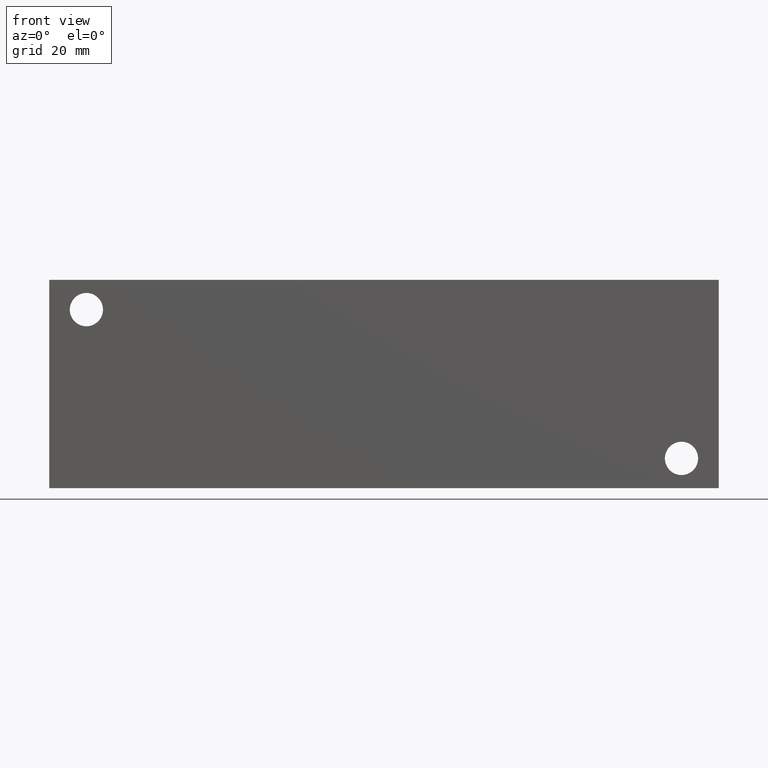
[diagram: clean part render]
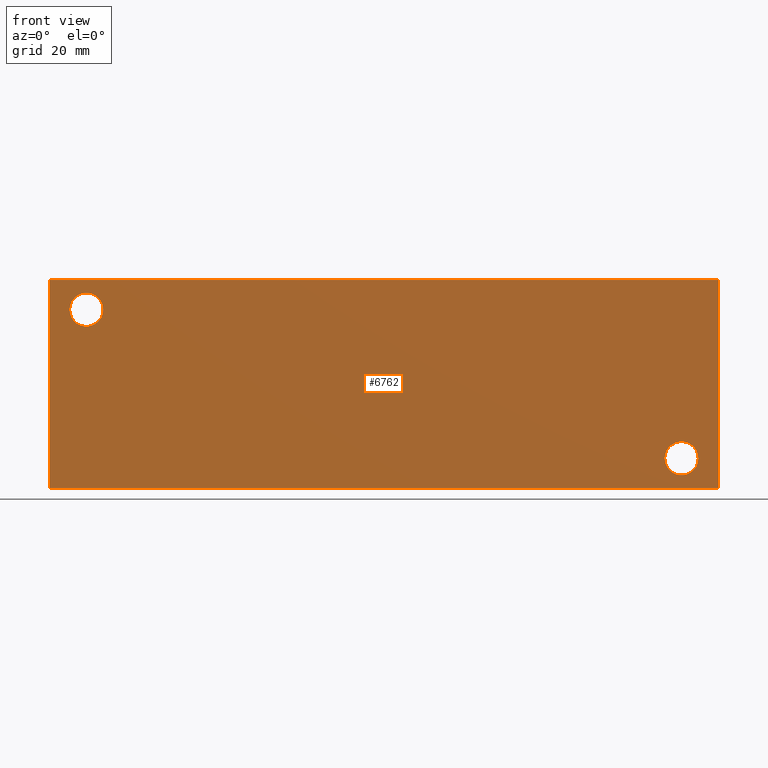
[diagram: same view with one face highlighted and labeled with its STEP entity id]
A machine part, front view. The second image highlights one B-rep face of the part: STEP entity #6762.
In plain terms, the highlighted planar face has unit normal (0, -1, 0).
Its self-contained STEP definition (entity closure, byte-faithful):
#55=CIRCLE('',#7002,3.5687);
#56=CIRCLE('',#7003,3.5687);
#58=CIRCLE('',#7011,3.5687);
#59=CIRCLE('',#7012,3.5687);
#135=FACE_BOUND('',#1085,.T.);
#136=FACE_BOUND('',#1086,.T.);
#359=PLANE('',#7077);
#700=FACE_OUTER_BOUND('',#1084,.T.);
#1084=EDGE_LOOP('',(#6014,#6015,#6016,#6017));
#1085=EDGE_LOOP('',(#6018,#6019));
#1086=EDGE_LOOP('',(#6020,#6021));
#1358=LINE('',#10390,#2037);
#1763=LINE('',#11470,#2442);
#1768=LINE('',#11479,#2447);
#1769=LINE('',#11481,#2448);
#2037=VECTOR('',#7491,10.);
#2442=VECTOR('',#8346,10.);
#2447=VECTOR('',#8355,10.);
#2448=VECTOR('',#8358,10.);
#2933=VERTEX_POINT('',#10388);
#2934=VERTEX_POINT('',#10389);
#3209=VERTEX_POINT('',#11325);
#3210=VERTEX_POINT('',#11326);
#3214=VERTEX_POINT('',#11341);
#3215=VERTEX_POINT('',#11342);
#3256=VERTEX_POINT('',#11468);
#3258=VERTEX_POINT('',#11477);
#3700=EDGE_CURVE('',#2933,#2934,#1358,.T.);
#4107=EDGE_CURVE('',#3209,#3210,#55,.T.);
#4108=EDGE_CURVE('',#3210,#3209,#56,.T.);
#4116=EDGE_CURVE('',#3214,#3215,#58,.T.);
#4117=EDGE_CURVE('',#3215,#3214,#59,.T.);
#4176=EDGE_CURVE('',#3256,#2933,#1763,.T.);
#4181=EDGE_CURVE('',#3258,#2934,#1768,.T.);
#4182=EDGE_CURVE('',#3256,#3258,#1769,.T.);
#6014=ORIENTED_EDGE('',*,*,#4182,.T.);
#6015=ORIENTED_EDGE('',*,*,#4181,.T.);
#6016=ORIENTED_EDGE('',*,*,#3700,.F.);
#6017=ORIENTED_EDGE('',*,*,#4176,.F.);
#6018=ORIENTED_EDGE('',*,*,#4107,.T.);
#6019=ORIENTED_EDGE('',*,*,#4108,.T.);
#6020=ORIENTED_EDGE('',*,*,#4116,.T.);
#6021=ORIENTED_EDGE('',*,*,#4117,.T.);
#6762=ADVANCED_FACE('',(#700,#135,#136),#359,.T.);
#7002=AXIS2_PLACEMENT_3D('',#11327,#8176,#8177);
#7003=AXIS2_PLACEMENT_3D('',#11328,#8178,#8179);
#7011=AXIS2_PLACEMENT_3D('',#11343,#8196,#8197);
#7012=AXIS2_PLACEMENT_3D('',#11344,#8198,#8199);
#7077=AXIS2_PLACEMENT_3D('',#11480,#8356,#8357);
#7491=DIRECTION('',(1.,0.,0.));
#8176=DIRECTION('center_axis',(0.,1.,0.));
#8177=DIRECTION('ref_axis',(1.,0.,0.));
#8178=DIRECTION('center_axis',(0.,1.,0.));
#8179=DIRECTION('ref_axis',(1.,0.,0.));
#8196=DIRECTION('center_axis',(0.,1.,0.));
#8197=DIRECTION('ref_axis',(1.,0.,0.));
#8198=DIRECTION('center_axis',(0.,1.,0.));
#8199=DIRECTION('ref_axis',(1.,0.,0.));
#8346=DIRECTION('',(0.,0.,1.));
#8355=DIRECTION('',(0.,0.,1.));
#8356=DIRECTION('center_axis',(0.,-1.,0.));
#8357=DIRECTION('ref_axis',(1.,0.,0.));
#8358=DIRECTION('',(1.,0.,0.));
#10388=CARTESIAN_POINT('',(0.,0.,44.45));
#10389=CARTESIAN_POINT('',(142.875,0.,44.45));
#10390=CARTESIAN_POINT('',(0.,0.,44.45));
#11325=CARTESIAN_POINT('',(11.4935,0.,38.1));
#11326=CARTESIAN_POINT('',(4.3561,1.77635683940025E-14,38.1));
#11327=CARTESIAN_POINT('Origin',(7.9248,0.,38.1));
#11328=CARTESIAN_POINT('Origin',(7.9248,0.,38.1));
#11341=CARTESIAN_POINT('',(138.4935,0.,6.35));
#11342=CARTESIAN_POINT('',(131.3561,1.77635683940025E-14,6.35));
#11343=CARTESIAN_POINT('Origin',(134.9248,0.,6.35));
#11344=CARTESIAN_POINT('Origin',(134.9248,0.,6.35));
#11468=CARTESIAN_POINT('',(0.,0.,0.));
#11470=CARTESIAN_POINT('',(0.,0.,0.));
#11477=CARTESIAN_POINT('',(142.875,0.,0.));
#11479=CARTESIAN_POINT('',(142.875,0.,0.));
#11480=CARTESIAN_POINT('Origin',(0.,0.,0.));
#11481=CARTESIAN_POINT('',(0.,0.,0.));